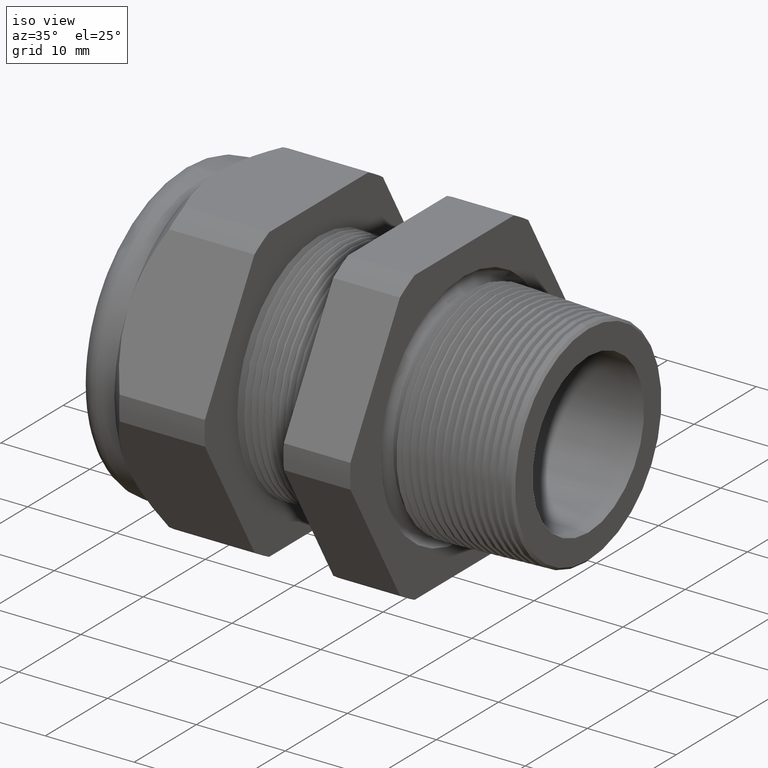
[diagram: clean part render]
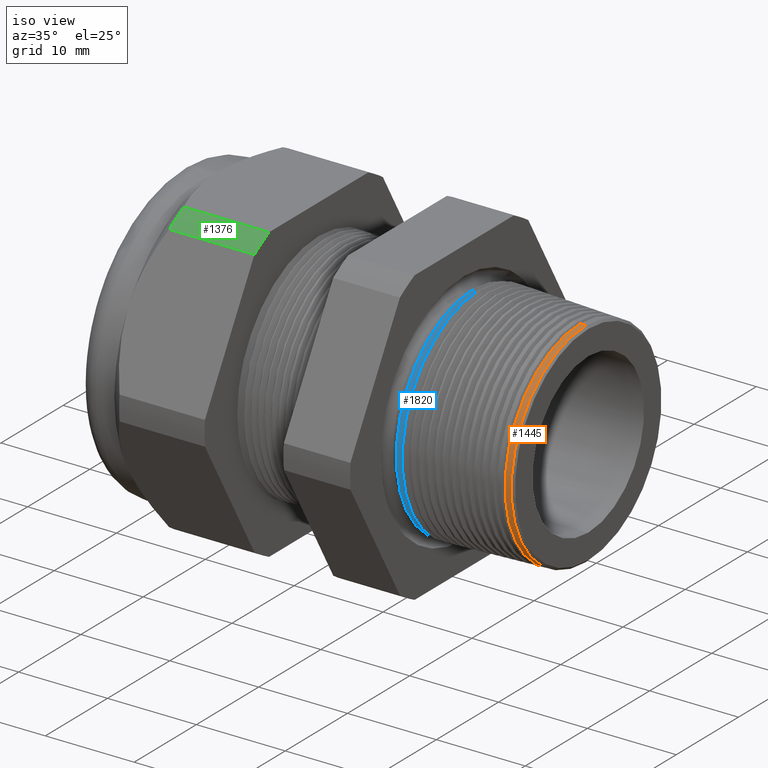
[diagram: same view with three faces highlighted in distinct colors, each labeled with its STEP entity id]
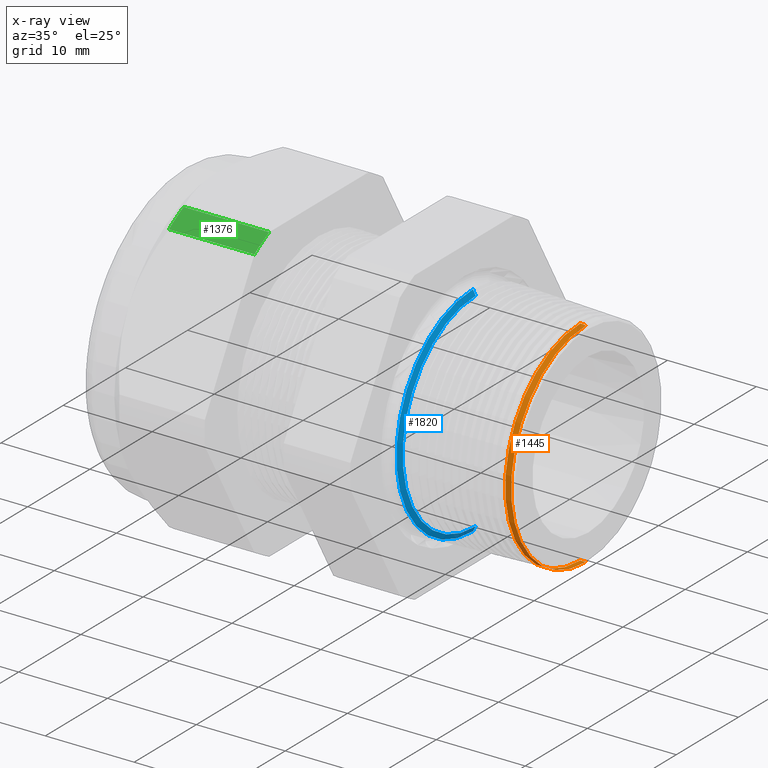
[diagram: x-ray of the same camera — body ghosted, the three highlighted faces saturated]
A machine part, iso view with three faces highlighted in distinct colors.
The next image is the same camera in x-ray (body ghosted, the three faces saturated) — at least one of them is partly hidden behind the body in this view.
Their STEP definitions:

[orange] entity #1445 — the highlighted conical surface has half-angle 2 deg.
#549 = VERTEX_POINT ( 'NONE', #3202 ) ;
#616 = VERTEX_POINT ( 'NONE', #3334 ) ;
#803 = VERTEX_POINT ( 'NONE', #3664 ) ;
#806 = VERTEX_POINT ( 'NONE', #3722 ) ;
#896 = EDGE_CURVE ( 'NONE', #803, #549, #3869, .T. ) ;
#899 = EDGE_CURVE ( 'NONE', #806, #616, #3862, .T. ) ;
#1445 = ADVANCED_FACE ( 'NONE', ( #4941 ), #4940, .T. ) ;
#1446 = EDGE_LOOP ( 'NONE', ( #1447, #1448, #1450, #1451 ) ) ;
#1447 = ORIENTED_EDGE ( 'NONE', *, *, #896, .F. ) ;
#1448 = ORIENTED_EDGE ( 'NONE', *, *, #1449, .T. ) ;
#1449 = EDGE_CURVE ( 'NONE', #803, #806, #5004, .T. ) ;
#1450 = ORIENTED_EDGE ( 'NONE', *, *, #899, .T. ) ;
#1451 = ORIENTED_EDGE ( 'NONE', *, *, #1452, .F. ) ;
#1452 = EDGE_CURVE ( 'NONE', #549, #616, #4995, .T. ) ;
#3202 = CARTESIAN_POINT ( 'NONE',  ( 0.2041559959649625600, 5.811362431205716800E-017, -0.4745337541609396200 ) ) ;
#3334 = CARTESIAN_POINT ( 'NONE',  ( 0.2041559959649625600, 0.0000000000000000000, 0.4745337541609396200 ) ) ;
#3664 = CARTESIAN_POINT ( 'NONE',  ( 0.2300060917298092400, 5.805834955819306600E-017, -0.4736310489253959800 ) ) ;
#3722 = CARTESIAN_POINT ( 'NONE',  ( 0.2300060917298092400, 0.0000000000000000000, 0.4736310489253959800 ) ) ;
#3859 = DIRECTION ( 'NONE',  ( -0.9993908270190959800, 0.0000000000000000000, 0.03489949670249379400 ) ) ;
#3860 = VECTOR ( 'NONE', #3859, 39.37007874015748100 ) ;
#3861 = CARTESIAN_POINT ( 'NONE',  ( 0.2400000000000001000, 0.0000000000000000000, 0.4732820539583710900 ) ) ;
#3862 = LINE ( 'NONE', #3861, #3860 ) ;
#3863 = DIRECTION ( 'NONE',  ( -0.9993908270190959800, 4.273955692856263600E-018, -0.03489949670249379400 ) ) ;
#3864 = VECTOR ( 'NONE', #3863, 39.37007874015748100 ) ;
#3865 = CARTESIAN_POINT ( 'NONE',  ( 0.2400000000000001000, 5.796033524740041000E-017, -0.4732820539583710900 ) ) ;
#3869 = LINE ( 'NONE', #3865, #3864 ) ;
#4940 = CONICAL_SURFACE ( 'NONE', #5003, 0.4732820539583710900, 0.03490658503987940900 ) ;
#4941 = FACE_OUTER_BOUND ( 'NONE', #1446, .T. ) ;
#4991 = DIRECTION ( 'NONE',  ( 0.0000000000000000000, 0.0000000000000000000, -1.000000000000000000 ) ) ;
#4992 = DIRECTION ( 'NONE',  ( -1.000000000000000000, 0.0000000000000000000, 0.0000000000000000000 ) ) ;
#4993 = CARTESIAN_POINT ( 'NONE',  ( 0.2041559959649625600, 0.0000000000000000000, 0.0000000000000000000 ) ) ;
#4994 = AXIS2_PLACEMENT_3D ( 'NONE', #4993, #4992, #4991 ) ;
#4995 = CIRCLE ( 'NONE', #4994, 0.4745337541609396200 ) ;
#4996 = DIRECTION ( 'NONE',  ( 0.0000000000000000000, 0.0000000000000000000, -1.000000000000000000 ) ) ;
#4997 = DIRECTION ( 'NONE',  ( -1.000000000000000000, 0.0000000000000000000, 0.0000000000000000000 ) ) ;
#4998 = CARTESIAN_POINT ( 'NONE',  ( 0.2300060917298092400, 0.0000000000000000000, 0.0000000000000000000 ) ) ;
#4999 = AXIS2_PLACEMENT_3D ( 'NONE', #4998, #4997, #4996 ) ;
#5000 = DIRECTION ( 'NONE',  ( 0.0000000000000000000, 0.0000000000000000000, 1.000000000000000000 ) ) ;
#5001 = DIRECTION ( 'NONE',  ( -1.000000000000000000, 0.0000000000000000000, 0.0000000000000000000 ) ) ;
#5002 = CARTESIAN_POINT ( 'NONE',  ( 0.2400000000000001000, 0.0000000000000000000, 0.0000000000000000000 ) ) ;
#5003 = AXIS2_PLACEMENT_3D ( 'NONE', #5002, #5001, #5000 ) ;
#5004 = CIRCLE ( 'NONE', #4999, 0.4736310489253959800 ) ;

[blue] entity #1820 — the highlighted conical surface has half-angle 62 deg.
#220 = VERTEX_POINT ( 'NONE', #2588 ) ;
#221 = VERTEX_POINT ( 'NONE', #2587 ) ;
#246 = EDGE_CURVE ( 'NONE', #220, #542, #2598, .T. ) ;
#251 = EDGE_CURVE ( 'NONE', #221, #559, #2645, .T. ) ;
#542 = VERTEX_POINT ( 'NONE', #3160 ) ;
#559 = VERTEX_POINT ( 'NONE', #3251 ) ;
#609 = EDGE_CURVE ( 'NONE', #542, #559, #3291, .T. ) ;
#1820 = ADVANCED_FACE ( 'NONE', ( #5464 ), #5463, .T. ) ;
#1821 = EDGE_LOOP ( 'NONE', ( #1822, #1876, #1878, #1879 ) ) ;
#1822 = ORIENTED_EDGE ( 'NONE', *, *, #251, .F. ) ;
#1876 = ORIENTED_EDGE ( 'NONE', *, *, #1877, .F. ) ;
#1877 = EDGE_CURVE ( 'NONE', #220, #221, #5584, .T. ) ;
#1878 = ORIENTED_EDGE ( 'NONE', *, *, #246, .T. ) ;
#1879 = ORIENTED_EDGE ( 'NONE', *, *, #609, .T. ) ;
#2587 = CARTESIAN_POINT ( 'NONE',  ( -0.2587370280109210800, 5.796418670604033600E-017, -0.4619022753537824200 ) ) ;
#2588 = CARTESIAN_POINT ( 'NONE',  ( -0.2587370280109210800, 0.0000000000000000000, 0.4619022753537824200 ) ) ;
#2595 = DIRECTION ( 'NONE',  ( -0.4694715627859013500, 0.0000000000000000000, 0.8829475928589212200 ) ) ;
#2596 = VECTOR ( 'NONE', #2595, 39.37007874015748900 ) ;
#2597 = CARTESIAN_POINT ( 'NONE',  ( -0.2749999999999999700, 0.0000000000000000000, 0.4924884771788283800 ) ) ;
#2598 = LINE ( 'NONE', #2597, #2596 ) ;
#2642 = DIRECTION ( 'NONE',  ( -0.4694715627859013500, 1.081298943409538200E-016, -0.8829475928589212200 ) ) ;
#2643 = VECTOR ( 'NONE', #2642, 39.37007874015748900 ) ;
#2644 = CARTESIAN_POINT ( 'NONE',  ( -0.2749999999999999700, 6.031244371940064400E-017, -0.4924884771788283800 ) ) ;
#2645 = LINE ( 'NONE', #2644, #2643 ) ;
#3160 = CARTESIAN_POINT ( 'NONE',  ( -0.2708719432804219100, 0.0000000000000000000, 0.4847247316558673800 ) ) ;
#3251 = CARTESIAN_POINT ( 'NONE',  ( -0.2708719432804219100, 5.936165910899176600E-017, -0.4847247316558673800 ) ) ;
#3287 = DIRECTION ( 'NONE',  ( 0.0000000000000000000, 0.0000000000000000000, 1.000000000000000000 ) ) ;
#3288 = DIRECTION ( 'NONE',  ( 1.000000000000000000, 0.0000000000000000000, 0.0000000000000000000 ) ) ;
#3289 = CARTESIAN_POINT ( 'NONE',  ( -0.2708719432804219100, 0.0000000000000000000, 0.0000000000000000000 ) ) ;
#3290 = AXIS2_PLACEMENT_3D ( 'NONE', #3289, #3288, #3287 ) ;
#3291 = CIRCLE ( 'NONE', #3290, 0.4847247316558673200 ) ;
#5458 = DIRECTION ( 'NONE',  ( 0.0000000000000000000, 0.0000000000000000000, 1.000000000000000000 ) ) ;
#5459 = DIRECTION ( 'NONE',  ( -1.000000000000000000, 0.0000000000000000000, 0.0000000000000000000 ) ) ;
#5460 = AXIS2_PLACEMENT_3D ( 'NONE', #5468, #5459, #5458 ) ;
#5463 = CONICAL_SURFACE ( 'NONE', #5460, 0.4924884771788283800, 1.082104136236472300 ) ;
#5464 = FACE_OUTER_BOUND ( 'NONE', #1821, .T. ) ;
#5468 = CARTESIAN_POINT ( 'NONE',  ( -0.2749999999999999700, 0.0000000000000000000, 0.0000000000000000000 ) ) ;
#5581 = DIRECTION ( 'NONE',  ( 0.0000000000000000000, 0.0000000000000000000, -1.000000000000000000 ) ) ;
#5582 = DIRECTION ( 'NONE',  ( 1.000000000000000000, 0.0000000000000000000, 0.0000000000000000000 ) ) ;
#5583 = AXIS2_PLACEMENT_3D ( 'NONE', #5588, #5582, #5581 ) ;
#5584 = CIRCLE ( 'NONE', #5583, 0.4619022753537824200 ) ;
#5588 = CARTESIAN_POINT ( 'NONE',  ( -0.2587370280109210800, 0.0000000000000000000, 0.0000000000000000000 ) ) ;

[green] entity #1376 — the highlighted cylindrical surface (partial cylindrical patch) has radius 18.3261 mm, axis along (-1, 0, 0).
#416 = EDGE_LOOP ( 'NONE', ( #417, #1298, #1300, #1301 ) ) ;
#417 = ORIENTED_EDGE ( 'NONE', *, *, #1295, .T. ) ;
#1295 = EDGE_CURVE ( 'NONE', #1296, #1297, #4654, .T. ) ;
#1296 = VERTEX_POINT ( 'NONE', #4650 ) ;
#1297 = VERTEX_POINT ( 'NONE', #4649 ) ;
#1298 = ORIENTED_EDGE ( 'NONE', *, *, #1299, .T. ) ;
#1299 = EDGE_CURVE ( 'NONE', #1297, #1311, #4648, .T. ) ;
#1300 = ORIENTED_EDGE ( 'NONE', *, *, #1309, .F. ) ;
#1301 = ORIENTED_EDGE ( 'NONE', *, *, #1302, .F. ) ;
#1302 = EDGE_CURVE ( 'NONE', #1296, #1310, #4643, .T. ) ;
#1309 = EDGE_CURVE ( 'NONE', #1310, #1311, #4686, .T. ) ;
#1310 = VERTEX_POINT ( 'NONE', #4682 ) ;
#1311 = VERTEX_POINT ( 'NONE', #4681 ) ;
#1376 = ADVANCED_FACE ( 'NONE', ( #4833 ), #4831, .T. ) ;
#4639 = DIRECTION ( 'NONE',  ( 0.0000000000000000000, 0.0000000000000000000, -1.000000000000000000 ) ) ;
#4640 = DIRECTION ( 'NONE',  ( 1.000000000000000000, 0.0000000000000000000, 0.0000000000000000000 ) ) ;
#4641 = CARTESIAN_POINT ( 'NONE',  ( -0.9546456692913385400, 0.0000000000000000000, 0.0000000000000000000 ) ) ;
#4642 = AXIS2_PLACEMENT_3D ( 'NONE', #4641, #4640, #4639 ) ;
#4643 = CIRCLE ( 'NONE', #4642, 0.7215000000000000300 ) ;
#4644 = DIRECTION ( 'NONE',  ( 0.0000000000000000000, 0.0000000000000000000, -1.000000000000000000 ) ) ;
#4645 = DIRECTION ( 'NONE',  ( 1.000000000000000000, 0.0000000000000000000, 0.0000000000000000000 ) ) ;
#4646 = CARTESIAN_POINT ( 'NONE',  ( -1.333145669291338600, 0.0000000000000000000, 0.0000000000000000000 ) ) ;
#4647 = AXIS2_PLACEMENT_3D ( 'NONE', #4646, #4645, #4644 ) ;
#4648 = CIRCLE ( 'NONE', #4647, 0.7215000000000000300 ) ;
#4649 = CARTESIAN_POINT ( 'NONE',  ( -1.333145669291338800, -0.3131489262315937900, 0.6499999999999999100 ) ) ;
#4650 = CARTESIAN_POINT ( 'NONE',  ( -0.9546456692913385400, -0.3131489262315937400, 0.6500000000000000200 ) ) ;
#4651 = DIRECTION ( 'NONE',  ( -1.000000000000000000, 0.0000000000000000000, 0.0000000000000000000 ) ) ;
#4652 = VECTOR ( 'NONE', #4651, 39.37007874015748100 ) ;
#4653 = CARTESIAN_POINT ( 'NONE',  ( 0.2400000000000001900, -0.3131489262315937400, 0.6500000000000000200 ) ) ;
#4654 = LINE ( 'NONE', #4653, #4652 ) ;
#4681 = CARTESIAN_POINT ( 'NONE',  ( -1.333145669291338600, -0.4063420493440888500, 0.5961949252843790100 ) ) ;
#4682 = CARTESIAN_POINT ( 'NONE',  ( -0.9546456692913385400, -0.4063420493440888500, 0.5961949252843790100 ) ) ;
#4683 = DIRECTION ( 'NONE',  ( -1.000000000000000000, 0.0000000000000000000, 0.0000000000000000000 ) ) ;
#4684 = VECTOR ( 'NONE', #4683, 39.37007874015748100 ) ;
#4685 = CARTESIAN_POINT ( 'NONE',  ( 0.2400000000000001900, -0.4063420493440888500, 0.5961949252843790100 ) ) ;
#4686 = LINE ( 'NONE', #4685, #4684 ) ;
#4827 = DIRECTION ( 'NONE',  ( 0.0000000000000000000, 0.0000000000000000000, 1.000000000000000000 ) ) ;
#4828 = DIRECTION ( 'NONE',  ( -1.000000000000000000, 0.0000000000000000000, 0.0000000000000000000 ) ) ;
#4829 = CARTESIAN_POINT ( 'NONE',  ( 0.2400000000000001900, 0.0000000000000000000, 0.0000000000000000000 ) ) ;
#4830 = AXIS2_PLACEMENT_3D ( 'NONE', #4829, #4828, #4827 ) ;
#4831 = CYLINDRICAL_SURFACE ( 'NONE', #4830, 0.7215000000000000300 ) ;
#4833 = FACE_OUTER_BOUND ( 'NONE', #416, .T. ) ;